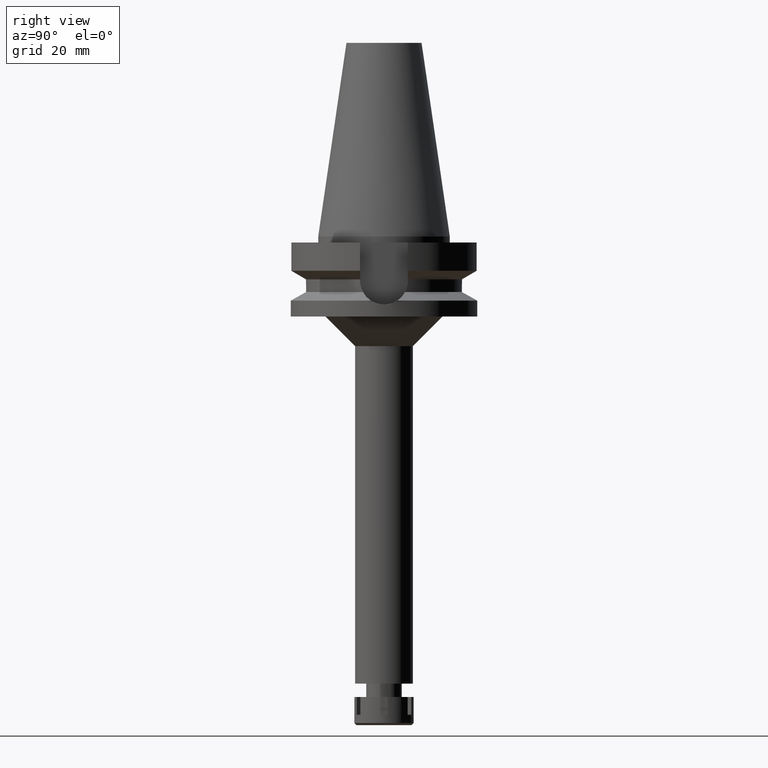
[diagram: clean part render]
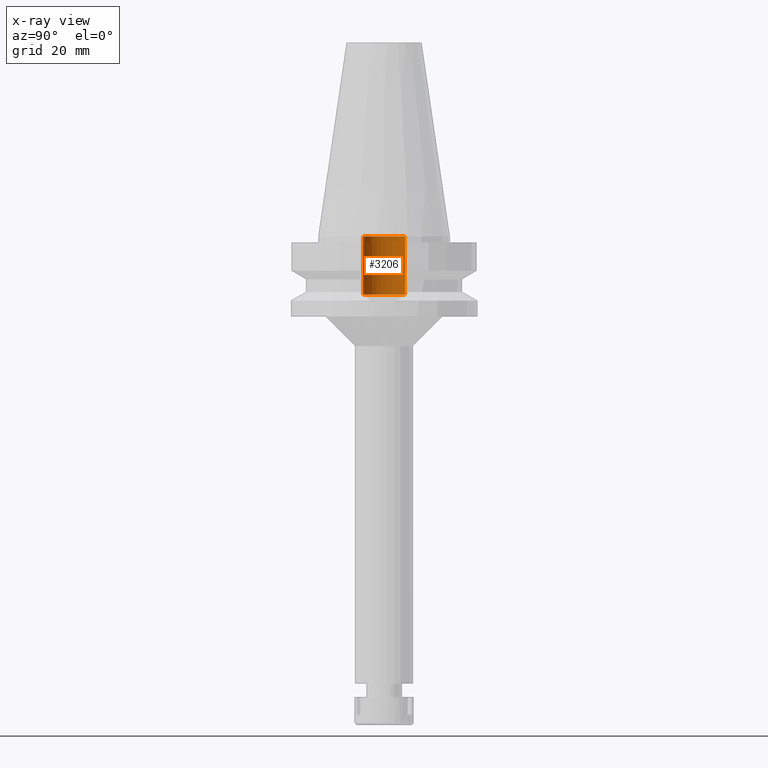
[diagram: x-ray — body ghosted, one internal face saturated and labeled with its STEP entity id]
A machine part, right view, then the same camera in x-ray: the body is ghosted and one INTERNAL B-rep face — a face not visible from any outside direction — is saturated and labeled: STEP entity #3206.
In plain terms, the highlighted cylindrical surface (edge-blend (fillet) strip) has radius 7.1 mm, axis along (0, 0, -1).
Its self-contained STEP definition (entity closure, byte-faithful):
#6 = FACE_OUTER_BOUND ( 'NONE', #2986, .T. ) ;
#14 = ORIENTED_EDGE ( 'NONE', *, *, #768, .T. ) ;
#35 = CARTESIAN_POINT ( 'NONE',  ( 0.0000000000000000000, 7.100000000000000533, -5.684341886080998387E-14 ) ) ;
#192 = CARTESIAN_POINT ( 'NONE',  ( 0.0000000000000000000, 2.163583500053999606E-14, -5.684341886080998387E-14 ) ) ;
#210 = ORIENTED_EDGE ( 'NONE', *, *, #2179, .F. ) ;
#312 = CARTESIAN_POINT ( 'NONE',  ( 0.0000000000000000000, -7.100000000000000533, -19.59999999999999787 ) ) ;
#315 = CARTESIAN_POINT ( 'NONE',  ( 0.0000000000000000000, 2.163583500053999606E-14, 76.67000000000000171 ) ) ;
#392 = DIRECTION ( 'NONE',  ( 0.0000000000000000000, 0.0000000000000000000, -1.000000000000000000 ) ) ;
#450 = AXIS2_PLACEMENT_3D ( 'NONE', #315, #1426, #1763 ) ;
#565 = LINE ( 'NONE', #2823, #1217 ) ;
#637 = VERTEX_POINT ( 'NONE', #35 ) ;
#667 = ORIENTED_EDGE ( 'NONE', *, *, #1422, .F. ) ;
#668 = ORIENTED_EDGE ( 'NONE', *, *, #2129, .T. ) ;
#768 = EDGE_CURVE ( 'NONE', #3458, #1847, #2281, .T. ) ;
#869 = VECTOR ( 'NONE', #3007, 1000.000000000000000 ) ;
#877 = CARTESIAN_POINT ( 'NONE',  ( 0.0000000000000000000, 2.163583500053999606E-14, -19.59999999999999787 ) ) ;
#1098 = CARTESIAN_POINT ( 'NONE',  ( 0.0000000000000000000, 7.100000000000000533, -19.59999999999999787 ) ) ;
#1122 = CYLINDRICAL_SURFACE ( 'NONE', #450, 7.100000000000000533 ) ;
#1166 = VERTEX_POINT ( 'NONE', #2649 ) ;
#1217 = VECTOR ( 'NONE', #1984, 1000.000000000000000 ) ;
#1301 = DIRECTION ( 'NONE',  ( 0.0000000000000000000, 0.0000000000000000000, -1.000000000000000000 ) ) ;
#1422 = EDGE_CURVE ( 'NONE', #3458, #1166, #2148, .T. ) ;
#1426 = DIRECTION ( 'NONE',  ( 0.0000000000000000000, 0.0000000000000000000, -1.000000000000000000 ) ) ;
#1763 = DIRECTION ( 'NONE',  ( 0.0000000000000000000, -1.000000000000000000, 0.0000000000000000000 ) ) ;
#1789 = DIRECTION ( 'NONE',  ( 0.0000000000000000000, -1.000000000000000000, 0.0000000000000000000 ) ) ;
#1847 = VERTEX_POINT ( 'NONE', #1098 ) ;
#1984 = DIRECTION ( 'NONE',  ( 0.0000000000000000000, 0.0000000000000000000, 1.000000000000000000 ) ) ;
#1985 = AXIS2_PLACEMENT_3D ( 'NONE', #192, #1301, #2118 ) ;
#2118 = DIRECTION ( 'NONE',  ( 0.0000000000000000000, -1.000000000000000000, 0.0000000000000000000 ) ) ;
#2129 = EDGE_CURVE ( 'NONE', #1847, #637, #565, .T. ) ;
#2148 = LINE ( 'NONE', #312, #869 ) ;
#2179 = EDGE_CURVE ( 'NONE', #1166, #637, #3587, .T. ) ;
#2281 = CIRCLE ( 'NONE', #3168, 7.100000000000000533 ) ;
#2649 = CARTESIAN_POINT ( 'NONE',  ( 0.0000000000000000000, -7.100000000000000533, -5.684341886080998387E-14 ) ) ;
#2823 = CARTESIAN_POINT ( 'NONE',  ( 0.0000000000000000000, 7.100000000000000533, -19.59999999999999787 ) ) ;
#2986 = EDGE_LOOP ( 'NONE', ( #210, #667, #14, #668 ) ) ;
#3007 = DIRECTION ( 'NONE',  ( 0.0000000000000000000, 0.0000000000000000000, 1.000000000000000000 ) ) ;
#3168 = AXIS2_PLACEMENT_3D ( 'NONE', #877, #392, #1789 ) ;
#3206 = ADVANCED_FACE ( 'NONE', ( #6 ), #1122, .F. ) ;
#3458 = VERTEX_POINT ( 'NONE', #3591 ) ;
#3587 = CIRCLE ( 'NONE', #1985, 7.100000000000000533 ) ;
#3591 = CARTESIAN_POINT ( 'NONE',  ( 0.0000000000000000000, -7.100000000000000533, -19.59999999999999787 ) ) ;